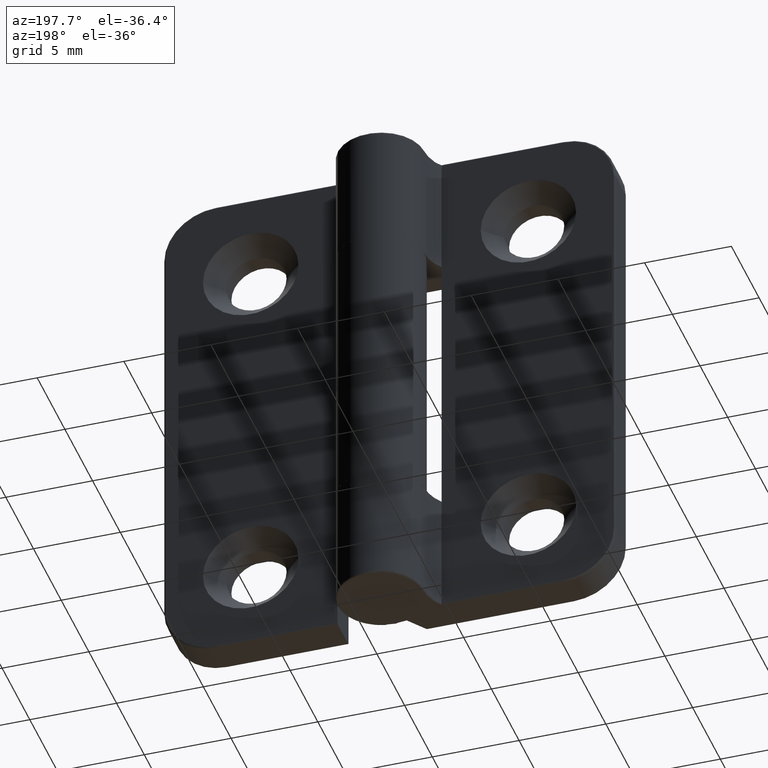
[diagram: clean part render]
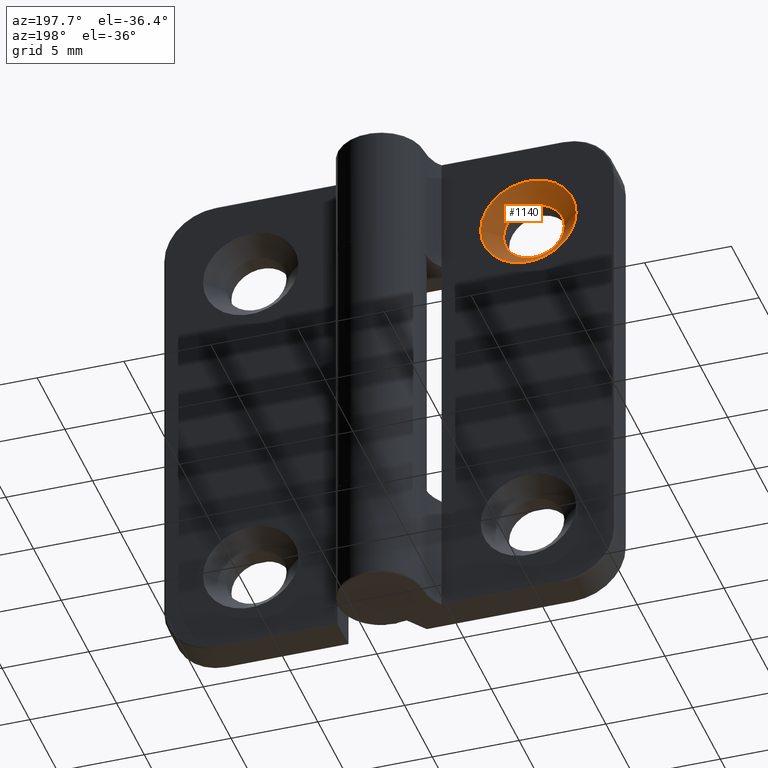
[diagram: same view with one face highlighted and labeled with its STEP entity id]
A machine part, auxiliary view. The second image highlights one B-rep face of the part: STEP entity #1140.
In plain terms, the highlighted conical surface has half-angle 45 deg.
Its self-contained STEP definition (entity closure, byte-faithful):
#35=CONICAL_SURFACE('',#1262,2.25,45.);
#101=FACE_BOUND('',#316,.T.);
#158=CIRCLE('',#1253,2.75);
#161=CIRCLE('',#1263,1.75);
#233=FACE_OUTER_BOUND('',#315,.T.);
#315=EDGE_LOOP('',(#932));
#316=EDGE_LOOP('',(#933));
#562=VERTEX_POINT('',#1945);
#565=VERTEX_POINT('',#1963);
#691=EDGE_CURVE('',#562,#562,#158,.T.);
#699=EDGE_CURVE('',#565,#565,#161,.T.);
#932=ORIENTED_EDGE('',*,*,#691,.F.);
#933=ORIENTED_EDGE('',*,*,#699,.F.);
#1140=ADVANCED_FACE('',(#233,#101),#35,.F.);
#1253=AXIS2_PLACEMENT_3D('',#1946,#1519,#1520);
#1262=AXIS2_PLACEMENT_3D('',#1962,#1542,#1543);
#1263=AXIS2_PLACEMENT_3D('',#1964,#1544,#1545);
#1519=DIRECTION('center_axis',(-2.77555756156289E-17,-1.,0.));
#1520=DIRECTION('ref_axis',(1.,-2.77555756156289E-17,0.));
#1542=DIRECTION('center_axis',(2.77555756156289E-17,1.,0.));
#1543=DIRECTION('ref_axis',(1.,-2.77555756156289E-17,0.));
#1544=DIRECTION('center_axis',(2.77555756156289E-17,1.,0.));
#1545=DIRECTION('ref_axis',(1.,-2.77555756156289E-17,0.));
#1945=CARTESIAN_POINT('',(-5.25,2.,10.));
#1946=CARTESIAN_POINT('Origin',(-8.,2.,10.));
#1962=CARTESIAN_POINT('Origin',(-8.,1.5,10.));
#1963=CARTESIAN_POINT('',(-6.25,1.,10.));
#1964=CARTESIAN_POINT('Origin',(-8.,1.,10.));